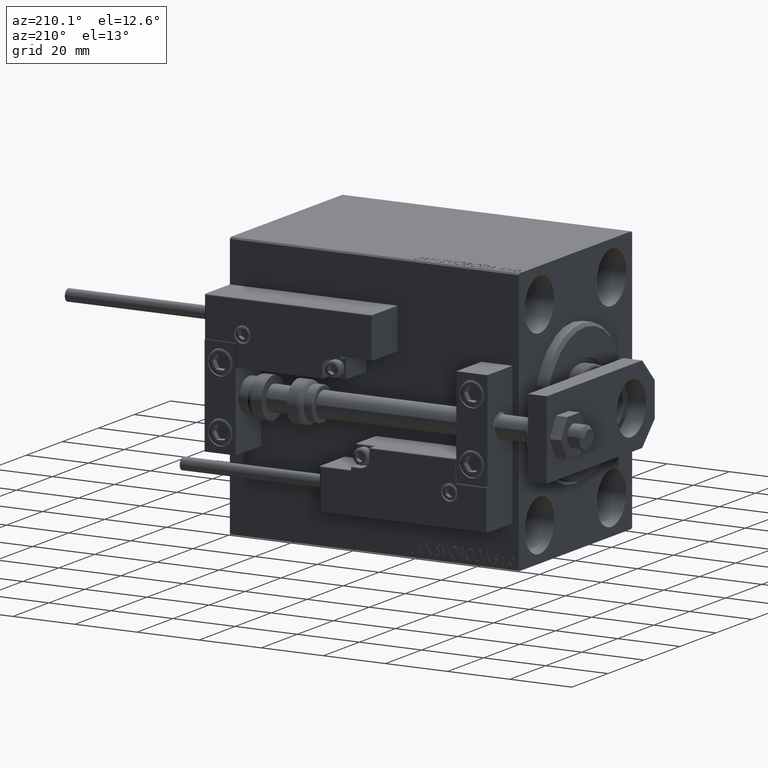
[diagram: clean part render]
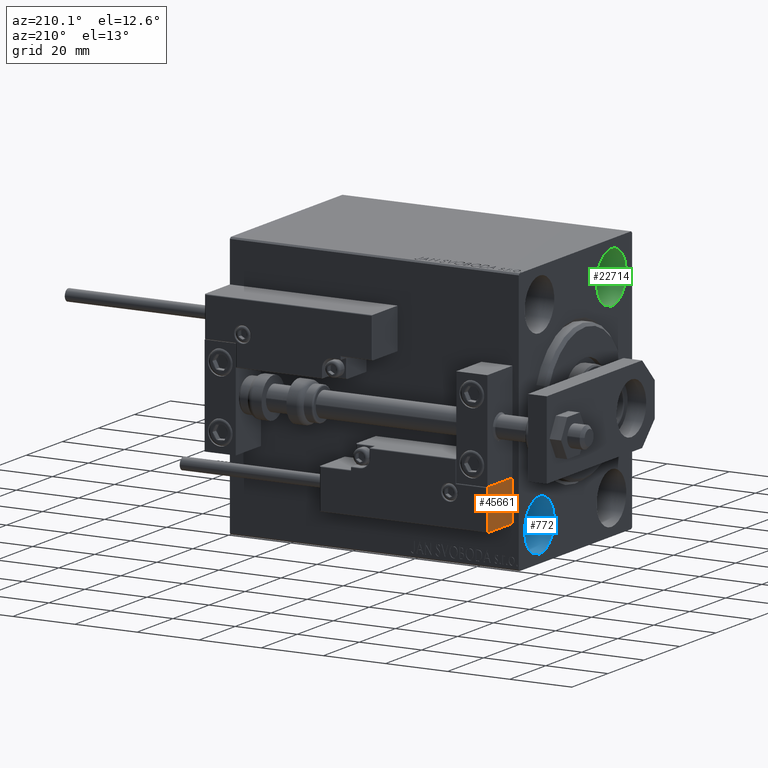
[diagram: same view with three faces highlighted in distinct colors, each labeled with its STEP entity id]
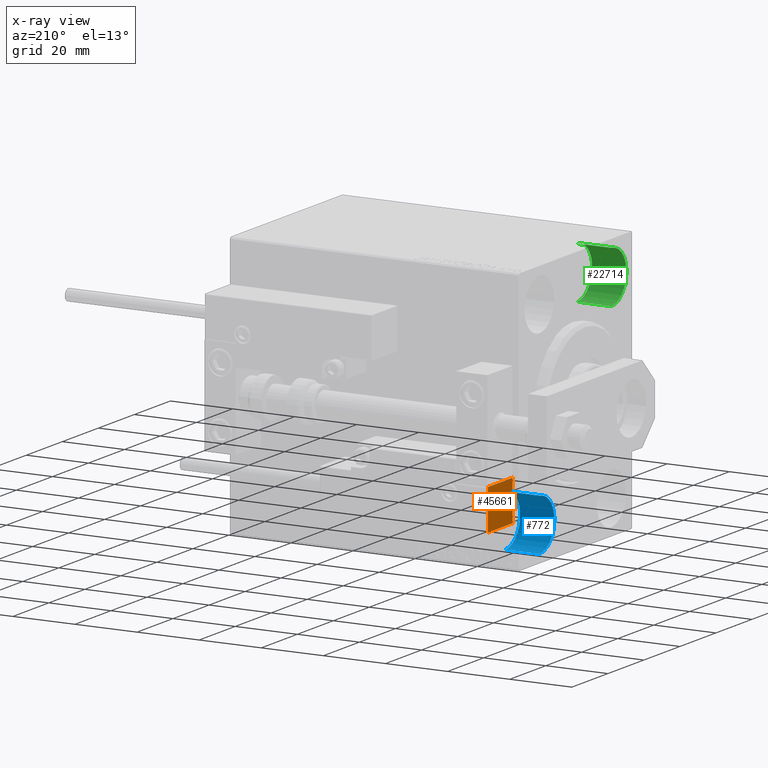
[diagram: x-ray of the same camera — body ghosted, the three highlighted faces saturated]
A machine part, auxiliary view with three faces highlighted in distinct colors.
The next image is the same camera in x-ray (body ghosted, the three faces saturated) — at least one of them is partly hidden behind the body in this view.
Their STEP definitions:

[orange] entity #45661 — the highlighted planar face has unit normal (1, 0, -0).
#123 = EDGE_CURVE ( 'NONE', #47266, #44735, #46110, .T. ) ;
#3758 = VECTOR ( 'NONE', #42307, 1000.000000000000000 ) ;
#4427 = VECTOR ( 'NONE', #41161, 1000.000000000000000 ) ;
#4790 = VERTEX_POINT ( 'NONE', #22324 ) ;
#10042 = CARTESIAN_POINT ( 'NONE',  ( -26.99999999999994671, 7.000000000000005329, 14.00000000000000000 ) ) ;
#10649 = DIRECTION ( 'NONE',  ( -8.006416042969869188E-16, -1.000000000000000000, 0.000000000000000000 ) ) ;
#11448 = VERTEX_POINT ( 'NONE', #44622 ) ;
#15547 = PLANE ( 'NONE',  #20853 ) ;
#15953 = CARTESIAN_POINT ( 'NONE',  ( -26.99999999999993605, 20.00000000000002132, 14.00000000000000000 ) ) ;
#18577 = ORIENTED_EDGE ( 'NONE', *, *, #38140, .F. ) ;
#19747 = CARTESIAN_POINT ( 'NONE',  ( -26.99999999999993605, 20.00000000000002132, 13.70000000000000107 ) ) ;
#20290 = EDGE_CURVE ( 'NONE', #44735, #4790, #29877, .T. ) ;
#20853 = AXIS2_PLACEMENT_3D ( 'NONE', #26715, #22909, #49996 ) ;
#22324 = CARTESIAN_POINT ( 'NONE',  ( -26.99999999999994671, 7.000000000000005329, 0.000000000000000000 ) ) ;
#22909 = DIRECTION ( 'NONE',  ( 1.000000000000000000, -8.006416042969869188E-16, 0.000000000000000000 ) ) ;
#24721 = LINE ( 'NONE', #10042, #4427 ) ;
#26050 = ORIENTED_EDGE ( 'NONE', *, *, #46500, .T. ) ;
#26715 = CARTESIAN_POINT ( 'NONE',  ( -26.99999999999993605, 20.00000000000002132, 14.00000000000000000 ) ) ;
#27247 = VECTOR ( 'NONE', #28064, 1000.000000000000000 ) ;
#28064 = DIRECTION ( 'NONE',  ( 8.006416042969869188E-16, 1.000000000000000000, -0.000000000000000000 ) ) ;
#28946 = CARTESIAN_POINT ( 'NONE',  ( -26.99999999999993605, 20.00000000000002132, 0.000000000000000000 ) ) ;
#29877 = LINE ( 'NONE', #45322, #42220 ) ;
#30744 = EDGE_LOOP ( 'NONE', ( #18577, #26050, #44905, #33199 ) ) ;
#33199 = ORIENTED_EDGE ( 'NONE', *, *, #20290, .T. ) ;
#38140 = EDGE_CURVE ( 'NONE', #11448, #4790, #24721, .T. ) ;
#41161 = DIRECTION ( 'NONE',  ( -0.000000000000000000, -0.000000000000000000, -1.000000000000000000 ) ) ;
#42220 = VECTOR ( 'NONE', #10649, 1000.000000000000000 ) ;
#42282 = CARTESIAN_POINT ( 'NONE',  ( -26.99999999999993605, 20.00000000000002132, 13.70000000000000107 ) ) ;
#42307 = DIRECTION ( 'NONE',  ( -0.000000000000000000, -0.000000000000000000, -1.000000000000000000 ) ) ;
#42641 = FACE_OUTER_BOUND ( 'NONE', #30744, .T. ) ;
#44622 = CARTESIAN_POINT ( 'NONE',  ( -26.99999999999994671, 7.000000000000005329, 13.70000000000000107 ) ) ;
#44735 = VERTEX_POINT ( 'NONE', #28946 ) ;
#44905 = ORIENTED_EDGE ( 'NONE', *, *, #123, .T. ) ;
#45322 = CARTESIAN_POINT ( 'NONE',  ( -26.99999999999993605, 20.00000000000002132, 0.000000000000000000 ) ) ;
#45661 = ADVANCED_FACE ( 'NONE', ( #42641 ), #15547, .F. ) ;
#46110 = LINE ( 'NONE', #15953, #3758 ) ;
#46500 = EDGE_CURVE ( 'NONE', #11448, #47266, #47318, .T. ) ;
#47266 = VERTEX_POINT ( 'NONE', #42282 ) ;
#47318 = LINE ( 'NONE', #19747, #27247 ) ;
#49996 = DIRECTION ( 'NONE',  ( 8.006416042969869188E-16, 1.000000000000000000, 0.000000000000000000 ) ) ;

[blue] entity #772 — the highlighted cylindrical surface (edge-blend (fillet) strip) has radius 8.25 mm, axis along (-1, -0, -0).
#772 = ADVANCED_FACE ( 'NONE', ( #42621 ), #1813, .F. ) ;
#1813 = CYLINDRICAL_SURFACE ( 'NONE', #44235, 8.250000000000000000 ) ;
#2453 = LINE ( 'NONE', #7004, #42566 ) ;
#2731 = AXIS2_PLACEMENT_3D ( 'NONE', #6223, #33326, #31032 ) ;
#2837 = DIRECTION ( 'NONE',  ( 0.000000000000000000, 0.000000000000000000, 1.000000000000000000 ) ) ;
#5082 = EDGE_CURVE ( 'NONE', #46758, #16800, #27758, .T. ) ;
#5619 = DIRECTION ( 'NONE',  ( 0.000000000000000000, 0.000000000000000000, 1.000000000000000000 ) ) ;
#6223 = CARTESIAN_POINT ( 'NONE',  ( 11.00000000000000000, 19.99999999999999645, -31.49999999999999289 ) ) ;
#6827 = EDGE_CURVE ( 'NONE', #16800, #7323, #17605, .T. ) ;
#7004 = CARTESIAN_POINT ( 'NONE',  ( 11.00000000000000000, 19.99999999999999645, -23.24999999999999289 ) ) ;
#7323 = VERTEX_POINT ( 'NONE', #38047 ) ;
#8455 = ORIENTED_EDGE ( 'NONE', *, *, #5082, .T. ) ;
#16361 = VERTEX_POINT ( 'NONE', #27494 ) ;
#16765 = DIRECTION ( 'NONE',  ( -1.000000000000000000, -0.000000000000000000, -0.000000000000000000 ) ) ;
#16800 = VERTEX_POINT ( 'NONE', #30669 ) ;
#17605 = CIRCLE ( 'NONE', #21616, 8.250000000000000000 ) ;
#18357 = ORIENTED_EDGE ( 'NONE', *, *, #42510, .F. ) ;
#18923 = DIRECTION ( 'NONE',  ( -1.000000000000000000, -0.000000000000000000, -0.000000000000000000 ) ) ;
#19752 = CIRCLE ( 'NONE', #2731, 8.250000000000000000 ) ;
#21616 = AXIS2_PLACEMENT_3D ( 'NONE', #37283, #22096, #2837 ) ;
#22096 = DIRECTION ( 'NONE',  ( -1.000000000000000000, 0.000000000000000000, 0.000000000000000000 ) ) ;
#23720 = EDGE_LOOP ( 'NONE', ( #43347, #8455, #26483, #18357 ) ) ;
#26483 = ORIENTED_EDGE ( 'NONE', *, *, #6827, .T. ) ;
#27494 = CARTESIAN_POINT ( 'NONE',  ( 11.00000000000000000, 19.99999999999999645, -23.24999999999999289 ) ) ;
#27509 = CARTESIAN_POINT ( 'NONE',  ( 11.00000000000000000, 19.99999999999999645, -39.74999999999999289 ) ) ;
#27758 = LINE ( 'NONE', #27509, #42617 ) ;
#30669 = CARTESIAN_POINT ( 'NONE',  ( 0.000000000000000000, 19.99999999999999645, -39.74999999999999289 ) ) ;
#31032 = DIRECTION ( 'NONE',  ( 0.000000000000000000, 0.000000000000000000, 1.000000000000000000 ) ) ;
#33326 = DIRECTION ( 'NONE',  ( -1.000000000000000000, 0.000000000000000000, 0.000000000000000000 ) ) ;
#36072 = EDGE_CURVE ( 'NONE', #46758, #16361, #19752, .T. ) ;
#36268 = CARTESIAN_POINT ( 'NONE',  ( 11.00000000000000000, 19.99999999999999645, -31.49999999999999289 ) ) ;
#37283 = CARTESIAN_POINT ( 'NONE',  ( 0.000000000000000000, 19.99999999999999645, -31.49999999999999289 ) ) ;
#38047 = CARTESIAN_POINT ( 'NONE',  ( 0.000000000000000000, 19.99999999999999645, -23.24999999999999289 ) ) ;
#42218 = CARTESIAN_POINT ( 'NONE',  ( 11.00000000000000000, 19.99999999999999645, -39.74999999999999289 ) ) ;
#42510 = EDGE_CURVE ( 'NONE', #16361, #7323, #2453, .T. ) ;
#42566 = VECTOR ( 'NONE', #18923, 1000.000000000000000 ) ;
#42617 = VECTOR ( 'NONE', #43199, 1000.000000000000000 ) ;
#42621 = FACE_OUTER_BOUND ( 'NONE', #23720, .T. ) ;
#43199 = DIRECTION ( 'NONE',  ( -1.000000000000000000, -0.000000000000000000, -0.000000000000000000 ) ) ;
#43347 = ORIENTED_EDGE ( 'NONE', *, *, #36072, .F. ) ;
#44235 = AXIS2_PLACEMENT_3D ( 'NONE', #36268, #16765, #5619 ) ;
#46758 = VERTEX_POINT ( 'NONE', #42218 ) ;

[green] entity #22714 — the highlighted cylindrical surface (edge-blend (fillet) strip) has radius 8.25 mm, axis along (-1, -0, -0).
#2297 = CARTESIAN_POINT ( 'NONE',  ( 11.00000000000000000, -19.99999999999999645, 31.50000000000000000 ) ) ;
#2695 = ORIENTED_EDGE ( 'NONE', *, *, #32271, .F. ) ;
#3466 = AXIS2_PLACEMENT_3D ( 'NONE', #19614, #11761, #15785 ) ;
#4634 = AXIS2_PLACEMENT_3D ( 'NONE', #15125, #26794, #46516 ) ;
#6507 = DIRECTION ( 'NONE',  ( -1.000000000000000000, -0.000000000000000000, -0.000000000000000000 ) ) ;
#6753 = ORIENTED_EDGE ( 'NONE', *, *, #31637, .T. ) ;
#7281 = CARTESIAN_POINT ( 'NONE',  ( 11.00000000000000000, -19.99999999999999645, 23.25000000000000355 ) ) ;
#10762 = ORIENTED_EDGE ( 'NONE', *, *, #47767, .T. ) ;
#11761 = DIRECTION ( 'NONE',  ( -1.000000000000000000, -0.000000000000000000, -0.000000000000000000 ) ) ;
#11768 = VERTEX_POINT ( 'NONE', #7281 ) ;
#12237 = VERTEX_POINT ( 'NONE', #43649 ) ;
#15125 = CARTESIAN_POINT ( 'NONE',  ( 0.000000000000000000, -19.99999999999999645, 31.50000000000000000 ) ) ;
#15785 = DIRECTION ( 'NONE',  ( 0.000000000000000000, 0.000000000000000000, 1.000000000000000000 ) ) ;
#16034 = CYLINDRICAL_SURFACE ( 'NONE', #3466, 8.249999999999992895 ) ;
#19614 = CARTESIAN_POINT ( 'NONE',  ( 11.00000000000000000, -19.99999999999999645, 31.50000000000000000 ) ) ;
#19852 = VECTOR ( 'NONE', #6507, 1000.000000000000000 ) ;
#22714 = ADVANCED_FACE ( 'NONE', ( #30748 ), #16034, .F. ) ;
#26222 = CIRCLE ( 'NONE', #45505, 8.249999999999992895 ) ;
#26610 = DIRECTION ( 'NONE',  ( 0.000000000000000000, 0.000000000000000000, 1.000000000000000000 ) ) ;
#26794 = DIRECTION ( 'NONE',  ( -1.000000000000000000, 0.000000000000000000, 0.000000000000000000 ) ) ;
#27720 = EDGE_LOOP ( 'NONE', ( #2695, #6753, #10762, #46976 ) ) ;
#30748 = FACE_OUTER_BOUND ( 'NONE', #27720, .T. ) ;
#31637 = EDGE_CURVE ( 'NONE', #11768, #12237, #49568, .T. ) ;
#32271 = EDGE_CURVE ( 'NONE', #11768, #34037, #26222, .T. ) ;
#33190 = DIRECTION ( 'NONE',  ( -1.000000000000000000, 0.000000000000000000, 0.000000000000000000 ) ) ;
#34037 = VERTEX_POINT ( 'NONE', #36445 ) ;
#34374 = DIRECTION ( 'NONE',  ( -1.000000000000000000, -0.000000000000000000, -0.000000000000000000 ) ) ;
#35409 = CARTESIAN_POINT ( 'NONE',  ( 0.000000000000000000, -19.99999999999999645, 39.74999999999999289 ) ) ;
#36445 = CARTESIAN_POINT ( 'NONE',  ( 11.00000000000000000, -19.99999999999999645, 39.74999999999999289 ) ) ;
#39684 = EDGE_CURVE ( 'NONE', #34037, #45487, #40184, .T. ) ;
#40184 = LINE ( 'NONE', #41194, #19852 ) ;
#40993 = CIRCLE ( 'NONE', #4634, 8.249999999999992895 ) ;
#41194 = CARTESIAN_POINT ( 'NONE',  ( 11.00000000000000000, -19.99999999999999645, 39.74999999999999289 ) ) ;
#43649 = CARTESIAN_POINT ( 'NONE',  ( 0.000000000000000000, -19.99999999999999645, 23.25000000000000355 ) ) ;
#44165 = VECTOR ( 'NONE', #34374, 1000.000000000000000 ) ;
#45487 = VERTEX_POINT ( 'NONE', #35409 ) ;
#45505 = AXIS2_PLACEMENT_3D ( 'NONE', #2297, #33190, #26610 ) ;
#46516 = DIRECTION ( 'NONE',  ( 0.000000000000000000, 0.000000000000000000, 1.000000000000000000 ) ) ;
#46976 = ORIENTED_EDGE ( 'NONE', *, *, #39684, .F. ) ;
#47767 = EDGE_CURVE ( 'NONE', #12237, #45487, #40993, .T. ) ;
#49065 = CARTESIAN_POINT ( 'NONE',  ( 11.00000000000000000, -19.99999999999999645, 23.25000000000000355 ) ) ;
#49568 = LINE ( 'NONE', #49065, #44165 ) ;